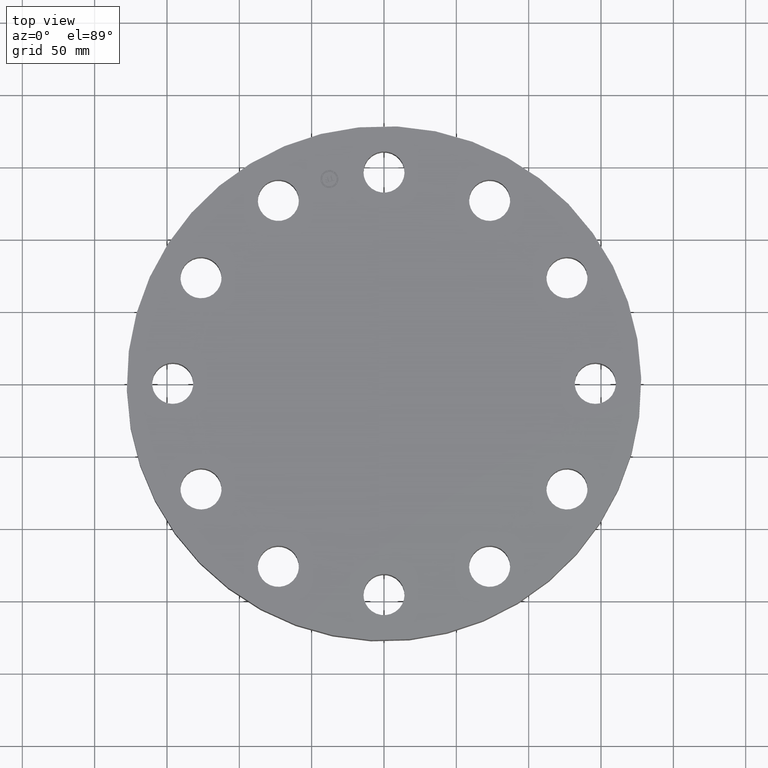
[diagram: clean part render]
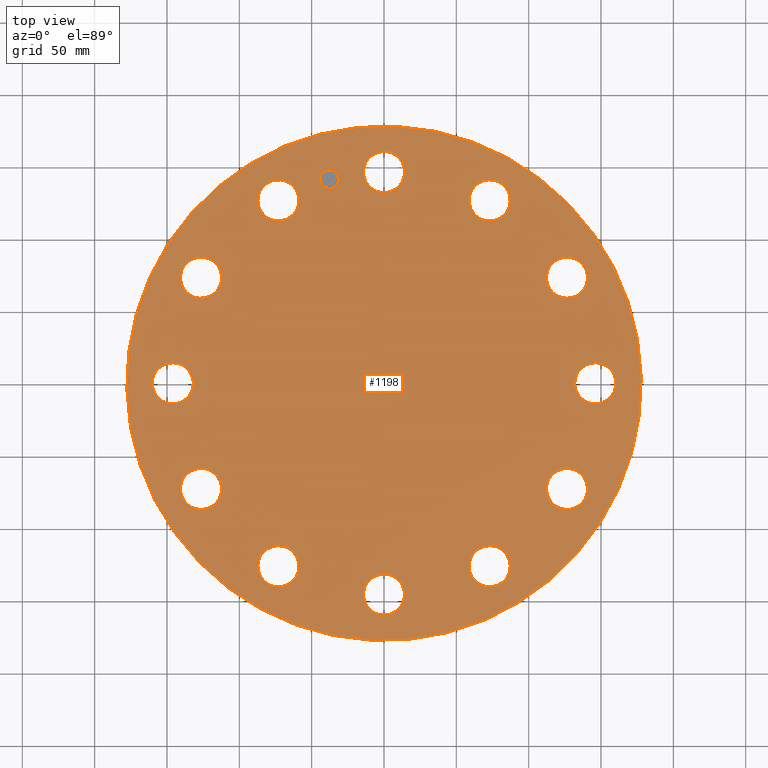
[diagram: same view with one face highlighted and labeled with its STEP entity id]
A machine part, top view. The second image highlights one B-rep face of the part: STEP entity #1198.
In plain terms, the highlighted planar face has unit normal (0, 0, -1).
Its self-contained STEP definition (entity closure, byte-faithful):
#126=AXIS2_PLACEMENT_3D('Circle Axis2P3D',#124,#125,$) ;
#143=AXIS2_PLACEMENT_3D('Circle Axis2P3D',#141,#142,$) ;
#183=AXIS2_PLACEMENT_3D('Circle Axis2P3D',#181,#182,$) ;
#200=AXIS2_PLACEMENT_3D('Circle Axis2P3D',#198,#199,$) ;
#240=AXIS2_PLACEMENT_3D('Circle Axis2P3D',#238,#239,$) ;
#257=AXIS2_PLACEMENT_3D('Circle Axis2P3D',#255,#256,$) ;
#297=AXIS2_PLACEMENT_3D('Circle Axis2P3D',#295,#296,$) ;
#314=AXIS2_PLACEMENT_3D('Circle Axis2P3D',#312,#313,$) ;
#354=AXIS2_PLACEMENT_3D('Circle Axis2P3D',#352,#353,$) ;
#371=AXIS2_PLACEMENT_3D('Circle Axis2P3D',#369,#370,$) ;
#411=AXIS2_PLACEMENT_3D('Circle Axis2P3D',#409,#410,$) ;
#428=AXIS2_PLACEMENT_3D('Circle Axis2P3D',#426,#427,$) ;
#468=AXIS2_PLACEMENT_3D('Circle Axis2P3D',#466,#467,$) ;
#485=AXIS2_PLACEMENT_3D('Circle Axis2P3D',#483,#484,$) ;
#525=AXIS2_PLACEMENT_3D('Circle Axis2P3D',#523,#524,$) ;
#542=AXIS2_PLACEMENT_3D('Circle Axis2P3D',#540,#541,$) ;
#582=AXIS2_PLACEMENT_3D('Circle Axis2P3D',#580,#581,$) ;
#599=AXIS2_PLACEMENT_3D('Circle Axis2P3D',#597,#598,$) ;
#639=AXIS2_PLACEMENT_3D('Circle Axis2P3D',#637,#638,$) ;
#656=AXIS2_PLACEMENT_3D('Circle Axis2P3D',#654,#655,$) ;
#696=AXIS2_PLACEMENT_3D('Circle Axis2P3D',#694,#695,$) ;
#713=AXIS2_PLACEMENT_3D('Circle Axis2P3D',#711,#712,$) ;
#870=AXIS2_PLACEMENT_3D('Circle Axis2P3D',#868,#869,$) ;
#889=AXIS2_PLACEMENT_3D('Circle Axis2P3D',#887,#888,$) ;
#920=AXIS2_PLACEMENT_3D('Circle Axis2P3D',#918,#919,$) ;
#932=AXIS2_PLACEMENT_3D('Circle Axis2P3D',#930,#931,$) ;
#1126=AXIS2_PLACEMENT_3D('Plane Axis2P3D',#1123,#1124,#1125) ;
#1182=AXIS2_PLACEMENT_3D('Circle Axis2P3D',#1180,#1181,$) ;
#1191=AXIS2_PLACEMENT_3D('Circle Axis2P3D',#1189,#1190,$) ;
#107=CARTESIAN_POINT('Vertex',(3.16636577301,4.50141392488,1.88000000001)) ;
#121=CARTESIAN_POINT('Vertex',(2.58363422701,5.45787821868,1.88000000001)) ;
#124=CARTESIAN_POINT('Axis2P3D Location',(2.87500000001,4.97964607178,1.88000000001)) ;
#141=CARTESIAN_POINT('Axis2P3D Location',(2.87500000001,4.97964607178,1.88000000001)) ;
#164=CARTESIAN_POINT('Vertex',(-0.491446234661,-5.4815216984,1.88000000001)) ;
#178=CARTESIAN_POINT('Vertex',(0.491446234661,-6.01847830164,1.88000000001)) ;
#181=CARTESIAN_POINT('Axis2P3D Location',(7.04171909513E-016,-5.75000000002,1.88000000001)) ;
#198=CARTESIAN_POINT('Axis2P3D Location',(7.04171909513E-016,-5.75000000002,1.88000000001)) ;
#221=CARTESIAN_POINT('Vertex',(-2.31515592539,4.99286015954,1.88000000001)) ;
#235=CARTESIAN_POINT('Vertex',(-3.43484407463,4.96643198402,1.88000000001)) ;
#238=CARTESIAN_POINT('Axis2P3D Location',(-2.87500000001,4.97964607178,1.88000000001)) ;
#255=CARTESIAN_POINT('Axis2P3D Location',(-2.87500000001,4.97964607178,1.88000000001)) ;
#278=CARTESIAN_POINT('Vertex',(2.31515592539,-4.99286015954,1.88000000001)) ;
#292=CARTESIAN_POINT('Vertex',(3.43484407463,-4.96643198402,1.88000000001)) ;
#295=CARTESIAN_POINT('Axis2P3D Location',(2.87500000001,-4.97964607178,1.88000000001)) ;
#312=CARTESIAN_POINT('Axis2P3D Location',(2.87500000001,-4.97964607178,1.88000000001)) ;
#335=CARTESIAN_POINT('Vertex',(-4.50141392488,3.16636577301,1.88000000001)) ;
#349=CARTESIAN_POINT('Vertex',(-5.45787821868,2.58363422701,1.88000000001)) ;
#352=CARTESIAN_POINT('Axis2P3D Location',(-4.97964607178,2.87500000001,1.88000000001)) ;
#369=CARTESIAN_POINT('Axis2P3D Location',(-4.97964607178,2.87500000001,1.88000000001)) ;
#392=CARTESIAN_POINT('Vertex',(4.50141392488,-3.16636577301,1.88000000001)) ;
#406=CARTESIAN_POINT('Vertex',(5.45787821868,-2.58363422701,1.88000000001)) ;
#409=CARTESIAN_POINT('Axis2P3D Location',(4.97964607178,-2.87500000001,1.88000000001)) ;
#426=CARTESIAN_POINT('Axis2P3D Location',(4.97964607178,-2.87500000001,1.88000000001)) ;
#449=CARTESIAN_POINT('Vertex',(-5.4815216984,0.491446234661,1.88000000001)) ;
#463=CARTESIAN_POINT('Vertex',(-6.01847830164,-0.491446234661,1.88000000001)) ;
#466=CARTESIAN_POINT('Axis2P3D Location',(-5.75000000002,-1.05625786427E-015,1.88000000001)) ;
#483=CARTESIAN_POINT('Axis2P3D Location',(-5.75000000002,-1.05625786427E-015,1.88000000001)) ;
#506=CARTESIAN_POINT('Vertex',(5.4815216984,-0.491446234661,1.88000000001)) ;
#520=CARTESIAN_POINT('Vertex',(6.01847830164,0.491446234661,1.88000000001)) ;
#523=CARTESIAN_POINT('Axis2P3D Location',(5.75000000002,-7.66878983449E-016,1.88000000001)) ;
#540=CARTESIAN_POINT('Axis2P3D Location',(5.75000000002,-7.66878983449E-016,1.88000000001)) ;
#563=CARTESIAN_POINT('Vertex',(-4.99286015954,-2.31515592539,1.88000000001)) ;
#577=CARTESIAN_POINT('Vertex',(-4.96643198402,-3.43484407463,1.88000000001)) ;
#580=CARTESIAN_POINT('Axis2P3D Location',(-4.97964607178,-2.87500000001,1.88000000001)) ;
#597=CARTESIAN_POINT('Axis2P3D Location',(-4.97964607178,-2.87500000001,1.88000000001)) ;
#620=CARTESIAN_POINT('Vertex',(4.99286015954,2.31515592539,1.88000000001)) ;
#634=CARTESIAN_POINT('Vertex',(4.96643198402,3.43484407463,1.88000000001)) ;
#637=CARTESIAN_POINT('Axis2P3D Location',(4.97964607178,2.87500000001,1.88000000001)) ;
#654=CARTESIAN_POINT('Axis2P3D Location',(4.97964607178,2.87500000001,1.88000000001)) ;
#677=CARTESIAN_POINT('Vertex',(-3.16636577301,-4.50141392488,1.88000000001)) ;
#691=CARTESIAN_POINT('Vertex',(-2.58363422701,-5.45787821868,1.88000000001)) ;
#694=CARTESIAN_POINT('Axis2P3D Location',(-2.87500000001,-4.97964607178,1.88000000001)) ;
#711=CARTESIAN_POINT('Axis2P3D Location',(-2.87500000001,-4.97964607178,1.88000000001)) ;
#865=CARTESIAN_POINT('Vertex',(3.35597877024,6.14307793326,1.88000000001)) ;
#868=CARTESIAN_POINT('Axis2P3D Location',(0.,0.,1.88000000001)) ;
#872=CARTESIAN_POINT('Vertex',(-3.35597877024,-6.14307793326,1.88000000001)) ;
#887=CARTESIAN_POINT('Axis2P3D Location',(0.,0.,1.88000000001)) ;
#908=CARTESIAN_POINT('Vertex',(0.491446234661,5.4815216984,1.88000000001)) ;
#915=CARTESIAN_POINT('Vertex',(-0.491446234661,6.01847830164,1.88000000001)) ;
#918=CARTESIAN_POINT('Axis2P3D Location',(0.,5.75000000002,1.88000000001)) ;
#930=CARTESIAN_POINT('Axis2P3D Location',(0.,5.75000000002,1.88000000001)) ;
#1123=CARTESIAN_POINT('Axis2P3D Location',(0.,7.00000000003,1.88000000001)) ;
#1180=CARTESIAN_POINT('Axis2P3D Location',(-1.48820950935,5.55407350118,1.88000000001)) ;
#1184=CARTESIAN_POINT('Vertex',(-1.72727615135,5.49001578752,1.88000000001)) ;
#1186=CARTESIAN_POINT('Vertex',(-1.24914286734,5.61813121485,1.88000000001)) ;
#1189=CARTESIAN_POINT('Axis2P3D Location',(-1.48820950935,5.55407350118,1.88000000001)) ;
#125=DIRECTION('Axis2P3D Direction',(0.,-0.,-0.0393700787402)) ;
#142=DIRECTION('Axis2P3D Direction',(0.,-0.,-0.0393700787402)) ;
#182=DIRECTION('Axis2P3D Direction',(-0.,0.,-0.0393700787402)) ;
#199=DIRECTION('Axis2P3D Direction',(-0.,0.,-0.0393700787402)) ;
#239=DIRECTION('Axis2P3D Direction',(0.,0.,-0.0393700787402)) ;
#256=DIRECTION('Axis2P3D Direction',(0.,0.,-0.0393700787402)) ;
#296=DIRECTION('Axis2P3D Direction',(-0.,0.,-0.0393700787402)) ;
#313=DIRECTION('Axis2P3D Direction',(-0.,0.,-0.0393700787402)) ;
#353=DIRECTION('Axis2P3D Direction',(0.,0.,-0.0393700787402)) ;
#370=DIRECTION('Axis2P3D Direction',(0.,0.,-0.0393700787402)) ;
#410=DIRECTION('Axis2P3D Direction',(-0.,0.,-0.0393700787402)) ;
#427=DIRECTION('Axis2P3D Direction',(-0.,0.,-0.0393700787402)) ;
#467=DIRECTION('Axis2P3D Direction',(0.,0.,-0.0393700787402)) ;
#484=DIRECTION('Axis2P3D Direction',(0.,0.,-0.0393700787402)) ;
#524=DIRECTION('Axis2P3D Direction',(0.,-0.,-0.0393700787402)) ;
#541=DIRECTION('Axis2P3D Direction',(0.,-0.,-0.0393700787402)) ;
#581=DIRECTION('Axis2P3D Direction',(0.,0.,-0.0393700787402)) ;
#598=DIRECTION('Axis2P3D Direction',(0.,0.,-0.0393700787402)) ;
#638=DIRECTION('Axis2P3D Direction',(0.,-0.,-0.0393700787402)) ;
#655=DIRECTION('Axis2P3D Direction',(0.,-0.,-0.0393700787402)) ;
#695=DIRECTION('Axis2P3D Direction',(0.,0.,-0.0393700787402)) ;
#712=DIRECTION('Axis2P3D Direction',(0.,0.,-0.0393700787402)) ;
#869=DIRECTION('Axis2P3D Direction',(0.,0.,-0.0393700787402)) ;
#888=DIRECTION('Axis2P3D Direction',(0.,0.,-0.0393700787402)) ;
#919=DIRECTION('Axis2P3D Direction',(0.,-0.,-0.0393700787402)) ;
#931=DIRECTION('Axis2P3D Direction',(0.,-0.,-0.0393700787402)) ;
#1124=DIRECTION('Axis2P3D Direction',(0.,0.,-0.0393700787402)) ;
#1125=DIRECTION('Axis2P3D XDirection',(0.0393700787402,0.,0.)) ;
#1181=DIRECTION('Axis2P3D Direction',(0.,0.,-0.0393700787402)) ;
#1190=DIRECTION('Axis2P3D Direction',(0.,0.,-0.0393700787402)) ;
#1129=ORIENTED_EDGE('',*,*,#874,.F.) ;
#1130=ORIENTED_EDGE('',*,*,#891,.F.) ;
#1133=ORIENTED_EDGE('',*,*,#934,.T.) ;
#1134=ORIENTED_EDGE('',*,*,#922,.T.) ;
#1137=ORIENTED_EDGE('',*,*,#128,.T.) ;
#1138=ORIENTED_EDGE('',*,*,#145,.T.) ;
#1141=ORIENTED_EDGE('',*,*,#641,.T.) ;
#1142=ORIENTED_EDGE('',*,*,#658,.T.) ;
#1145=ORIENTED_EDGE('',*,*,#527,.T.) ;
#1146=ORIENTED_EDGE('',*,*,#544,.T.) ;
#1149=ORIENTED_EDGE('',*,*,#413,.T.) ;
#1150=ORIENTED_EDGE('',*,*,#430,.T.) ;
#1153=ORIENTED_EDGE('',*,*,#299,.T.) ;
#1154=ORIENTED_EDGE('',*,*,#316,.T.) ;
#1157=ORIENTED_EDGE('',*,*,#185,.T.) ;
#1158=ORIENTED_EDGE('',*,*,#202,.T.) ;
#1161=ORIENTED_EDGE('',*,*,#698,.T.) ;
#1162=ORIENTED_EDGE('',*,*,#715,.T.) ;
#1165=ORIENTED_EDGE('',*,*,#584,.T.) ;
#1166=ORIENTED_EDGE('',*,*,#601,.T.) ;
#1169=ORIENTED_EDGE('',*,*,#470,.T.) ;
#1170=ORIENTED_EDGE('',*,*,#487,.T.) ;
#1173=ORIENTED_EDGE('',*,*,#356,.T.) ;
#1174=ORIENTED_EDGE('',*,*,#373,.T.) ;
#1177=ORIENTED_EDGE('',*,*,#242,.T.) ;
#1178=ORIENTED_EDGE('',*,*,#259,.T.) ;
#1195=ORIENTED_EDGE('',*,*,#1188,.T.) ;
#1196=ORIENTED_EDGE('',*,*,#1193,.T.) ;
#1135=FACE_BOUND('',#1132,.T.) ;
#1139=FACE_BOUND('',#1136,.T.) ;
#1143=FACE_BOUND('',#1140,.T.) ;
#1147=FACE_BOUND('',#1144,.T.) ;
#1151=FACE_BOUND('',#1148,.T.) ;
#1155=FACE_BOUND('',#1152,.T.) ;
#1159=FACE_BOUND('',#1156,.T.) ;
#1163=FACE_BOUND('',#1160,.T.) ;
#1167=FACE_BOUND('',#1164,.T.) ;
#1171=FACE_BOUND('',#1168,.T.) ;
#1175=FACE_BOUND('',#1172,.T.) ;
#1179=FACE_BOUND('',#1176,.T.) ;
#1197=FACE_BOUND('',#1194,.T.) ;
#1198=ADVANCED_FACE('PartBody',(#1131,#1135,#1139,#1143,#1147,#1151,#1155,#1159,#1163,#1167,#1171,#1175,#1179,#1197),#1127,.F.) ;
#127=CIRCLE('generated circle',#126,0.560000000002) ;
#144=CIRCLE('generated circle',#143,0.560000000002) ;
#184=CIRCLE('generated circle',#183,0.560000000002) ;
#201=CIRCLE('generated circle',#200,0.560000000002) ;
#241=CIRCLE('generated circle',#240,0.560000000002) ;
#258=CIRCLE('generated circle',#257,0.560000000002) ;
#298=CIRCLE('generated circle',#297,0.560000000002) ;
#315=CIRCLE('generated circle',#314,0.560000000002) ;
#355=CIRCLE('generated circle',#354,0.560000000002) ;
#372=CIRCLE('generated circle',#371,0.560000000002) ;
#412=CIRCLE('generated circle',#411,0.560000000002) ;
#429=CIRCLE('generated circle',#428,0.560000000002) ;
#469=CIRCLE('generated circle',#468,0.560000000002) ;
#486=CIRCLE('generated circle',#485,0.560000000002) ;
#526=CIRCLE('generated circle',#525,0.560000000002) ;
#543=CIRCLE('generated circle',#542,0.560000000002) ;
#583=CIRCLE('generated circle',#582,0.560000000002) ;
#600=CIRCLE('generated circle',#599,0.560000000002) ;
#640=CIRCLE('generated circle',#639,0.560000000002) ;
#657=CIRCLE('generated circle',#656,0.560000000002) ;
#697=CIRCLE('generated circle',#696,0.560000000002) ;
#714=CIRCLE('generated circle',#713,0.560000000002) ;
#871=CIRCLE('generated circle',#870,7.00000000003) ;
#890=CIRCLE('generated circle',#889,7.00000000003) ;
#921=CIRCLE('generated circle',#920,0.560000000002) ;
#933=CIRCLE('generated circle',#932,0.560000000002) ;
#1183=CIRCLE('generated circle',#1182,0.247500000001) ;
#1192=CIRCLE('generated circle',#1191,0.247500000001) ;
#128=EDGE_CURVE('',#108,#122,#127,.T.) ;
#145=EDGE_CURVE('',#122,#108,#144,.T.) ;
#185=EDGE_CURVE('',#165,#179,#184,.T.) ;
#202=EDGE_CURVE('',#179,#165,#201,.T.) ;
#242=EDGE_CURVE('',#222,#236,#241,.T.) ;
#259=EDGE_CURVE('',#236,#222,#258,.T.) ;
#299=EDGE_CURVE('',#279,#293,#298,.T.) ;
#316=EDGE_CURVE('',#293,#279,#315,.T.) ;
#356=EDGE_CURVE('',#336,#350,#355,.T.) ;
#373=EDGE_CURVE('',#350,#336,#372,.T.) ;
#413=EDGE_CURVE('',#393,#407,#412,.T.) ;
#430=EDGE_CURVE('',#407,#393,#429,.T.) ;
#470=EDGE_CURVE('',#450,#464,#469,.T.) ;
#487=EDGE_CURVE('',#464,#450,#486,.T.) ;
#527=EDGE_CURVE('',#507,#521,#526,.T.) ;
#544=EDGE_CURVE('',#521,#507,#543,.T.) ;
#584=EDGE_CURVE('',#564,#578,#583,.T.) ;
#601=EDGE_CURVE('',#578,#564,#600,.T.) ;
#641=EDGE_CURVE('',#621,#635,#640,.T.) ;
#658=EDGE_CURVE('',#635,#621,#657,.T.) ;
#698=EDGE_CURVE('',#678,#692,#697,.T.) ;
#715=EDGE_CURVE('',#692,#678,#714,.T.) ;
#874=EDGE_CURVE('',#866,#873,#871,.T.) ;
#891=EDGE_CURVE('',#873,#866,#890,.T.) ;
#922=EDGE_CURVE('',#909,#916,#921,.T.) ;
#934=EDGE_CURVE('',#916,#909,#933,.T.) ;
#1188=EDGE_CURVE('',#1185,#1187,#1183,.T.) ;
#1193=EDGE_CURVE('',#1187,#1185,#1192,.T.) ;
#1128=EDGE_LOOP('',(#1129,#1130)) ;
#1132=EDGE_LOOP('',(#1133,#1134)) ;
#1136=EDGE_LOOP('',(#1137,#1138)) ;
#1140=EDGE_LOOP('',(#1141,#1142)) ;
#1144=EDGE_LOOP('',(#1145,#1146)) ;
#1148=EDGE_LOOP('',(#1149,#1150)) ;
#1152=EDGE_LOOP('',(#1153,#1154)) ;
#1156=EDGE_LOOP('',(#1157,#1158)) ;
#1160=EDGE_LOOP('',(#1161,#1162)) ;
#1164=EDGE_LOOP('',(#1165,#1166)) ;
#1168=EDGE_LOOP('',(#1169,#1170)) ;
#1172=EDGE_LOOP('',(#1173,#1174)) ;
#1176=EDGE_LOOP('',(#1177,#1178)) ;
#1194=EDGE_LOOP('',(#1195,#1196)) ;
#1131=FACE_OUTER_BOUND('',#1128,.T.) ;
#1127=PLANE('',#1126) ;
#108=VERTEX_POINT('',#107) ;
#122=VERTEX_POINT('',#121) ;
#165=VERTEX_POINT('',#164) ;
#179=VERTEX_POINT('',#178) ;
#222=VERTEX_POINT('',#221) ;
#236=VERTEX_POINT('',#235) ;
#279=VERTEX_POINT('',#278) ;
#293=VERTEX_POINT('',#292) ;
#336=VERTEX_POINT('',#335) ;
#350=VERTEX_POINT('',#349) ;
#393=VERTEX_POINT('',#392) ;
#407=VERTEX_POINT('',#406) ;
#450=VERTEX_POINT('',#449) ;
#464=VERTEX_POINT('',#463) ;
#507=VERTEX_POINT('',#506) ;
#521=VERTEX_POINT('',#520) ;
#564=VERTEX_POINT('',#563) ;
#578=VERTEX_POINT('',#577) ;
#621=VERTEX_POINT('',#620) ;
#635=VERTEX_POINT('',#634) ;
#678=VERTEX_POINT('',#677) ;
#692=VERTEX_POINT('',#691) ;
#866=VERTEX_POINT('',#865) ;
#873=VERTEX_POINT('',#872) ;
#909=VERTEX_POINT('',#908) ;
#916=VERTEX_POINT('',#915) ;
#1185=VERTEX_POINT('',#1184) ;
#1187=VERTEX_POINT('',#1186) ;